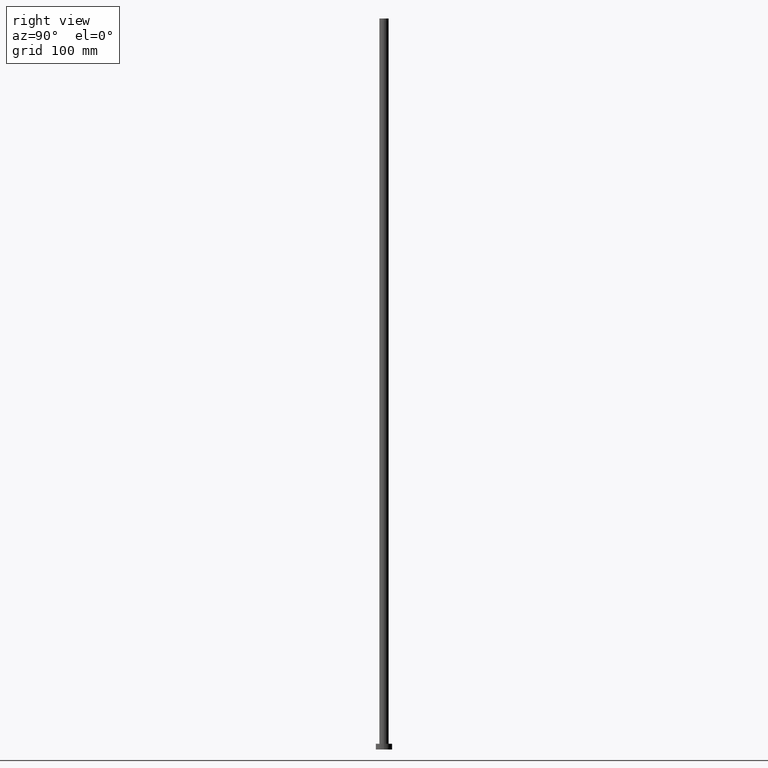
[diagram: clean part render]
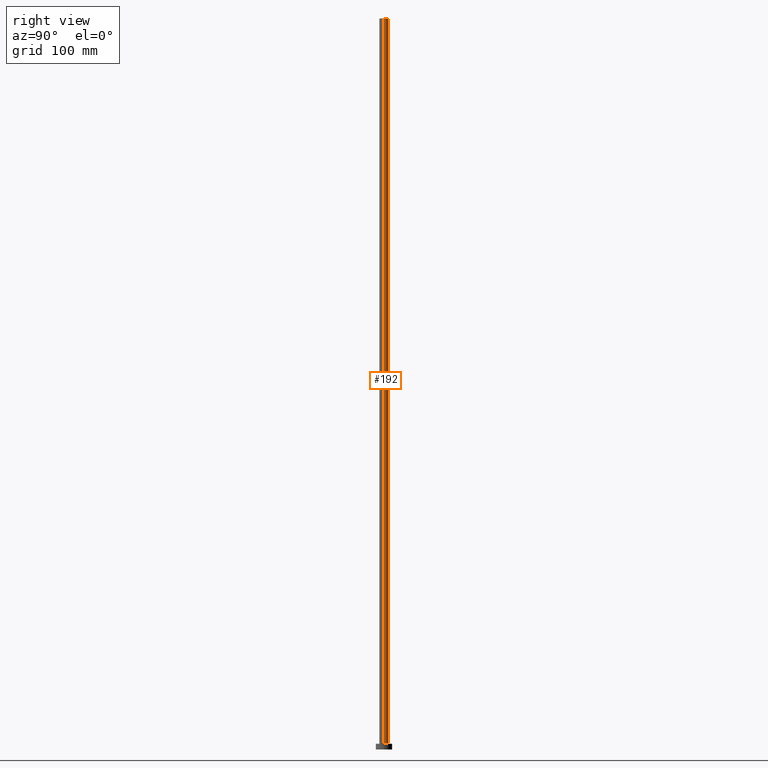
[diagram: same view with one face highlighted and labeled with its STEP entity id]
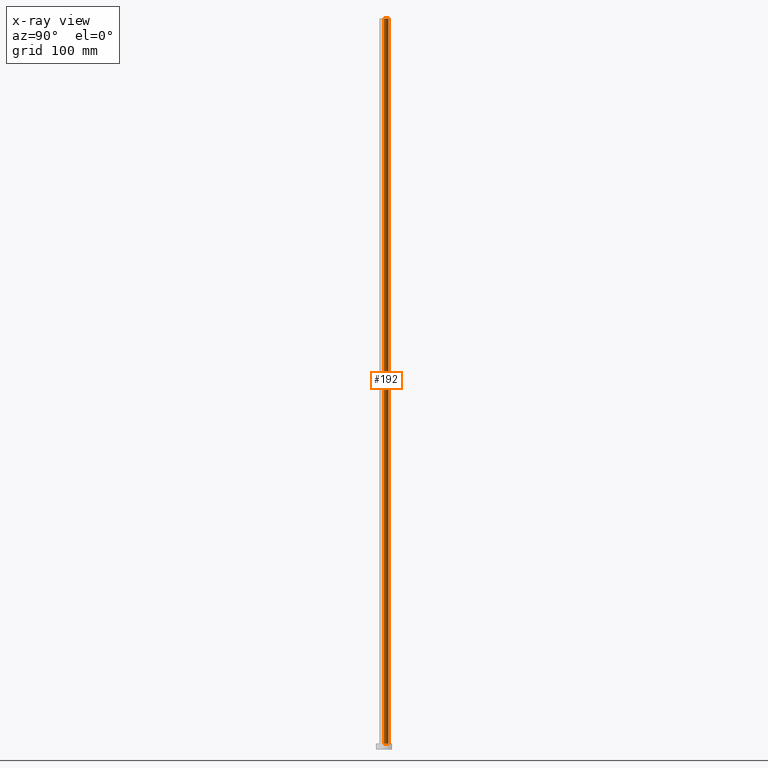
[diagram: x-ray of the same camera — body ghosted, the highlighted face saturated]
A machine part, right view. The second image highlights one B-rep face of the part: STEP entity #192.
The next image is the same camera in x-ray: the body ghosted, the highlighted face saturated — about 0% of this face is hidden behind the body in this view.
In plain terms, the highlighted cylindrical surface (edge-blend (fillet) strip) has radius 4 mm, axis along (-0, -0, -1).
Its self-contained STEP definition (entity closure, byte-faithful):
#5 = CARTESIAN_POINT ( 'NONE',  ( 0.000000000000000000, 0.000000000000000000, 5.000000000000000000 ) ) ;
#11 = VERTEX_POINT ( 'NONE', #140 ) ;
#12 = DIRECTION ( 'NONE',  ( 0.000000000000000000, 0.000000000000000000, 1.000000000000000000 ) ) ;
#18 = DIRECTION ( 'NONE',  ( -0.000000000000000000, -0.000000000000000000, -1.000000000000000000 ) ) ;
#33 = DIRECTION ( 'NONE',  ( -0.000000000000000000, -0.000000000000000000, -1.000000000000000000 ) ) ;
#35 = CARTESIAN_POINT ( 'NONE',  ( 0.000000000000000000, 0.000000000000000000, 630.0000000000000000 ) ) ;
#53 = EDGE_CURVE ( 'NONE', #79, #125, #101, .T. ) ;
#54 = DIRECTION ( 'NONE',  ( 1.000000000000000000, 0.000000000000000000, 0.000000000000000000 ) ) ;
#60 = LINE ( 'NONE', #209, #250 ) ;
#61 = EDGE_CURVE ( 'NONE', #125, #11, #60, .T. ) ;
#77 = ORIENTED_EDGE ( 'NONE', *, *, #220, .T. ) ;
#79 = VERTEX_POINT ( 'NONE', #151 ) ;
#86 = DIRECTION ( 'NONE',  ( 0.000000000000000000, 0.000000000000000000, 1.000000000000000000 ) ) ;
#101 = CIRCLE ( 'NONE', #167, 4.000000000000000000 ) ;
#109 = CIRCLE ( 'NONE', #254, 4.000000000000000000 ) ;
#117 = VERTEX_POINT ( 'NONE', #225 ) ;
#123 = ORIENTED_EDGE ( 'NONE', *, *, #174, .T. ) ;
#125 = VERTEX_POINT ( 'NONE', #135 ) ;
#135 = CARTESIAN_POINT ( 'NONE',  ( -4.000000000000000000, 0.000000000000000000, 630.0000000000000000 ) ) ;
#140 = CARTESIAN_POINT ( 'NONE',  ( -4.000000000000000000, 0.000000000000000000, 5.000000000000000000 ) ) ;
#144 = CYLINDRICAL_SURFACE ( 'NONE', #219, 4.000000000000000000 ) ;
#148 = FACE_OUTER_BOUND ( 'NONE', #229, .T. ) ;
#151 = CARTESIAN_POINT ( 'NONE',  ( 4.000000000000000000, 4.898587196589412829E-16, 630.0000000000000000 ) ) ;
#167 = AXIS2_PLACEMENT_3D ( 'NONE', #35, #12, #54 ) ;
#174 = EDGE_CURVE ( 'NONE', #79, #117, #200, .T. ) ;
#183 = DIRECTION ( 'NONE',  ( 1.000000000000000000, 0.000000000000000000, 0.000000000000000000 ) ) ;
#185 = VECTOR ( 'NONE', #247, 1000.000000000000000 ) ;
#192 = ADVANCED_FACE ( 'NONE', ( #148 ), #144, .T. ) ;
#195 = CARTESIAN_POINT ( 'NONE',  ( 0.000000000000000000, 0.000000000000000000, 630.0000000000000000 ) ) ;
#196 = ORIENTED_EDGE ( 'NONE', *, *, #53, .F. ) ;
#200 = LINE ( 'NONE', #222, #185 ) ;
#206 = ORIENTED_EDGE ( 'NONE', *, *, #61, .F. ) ;
#209 = CARTESIAN_POINT ( 'NONE',  ( -4.000000000000000000, 0.000000000000000000, 630.0000000000000000 ) ) ;
#212 = DIRECTION ( 'NONE',  ( -1.000000000000000000, 0.000000000000000000, 0.000000000000000000 ) ) ;
#219 = AXIS2_PLACEMENT_3D ( 'NONE', #195, #18, #212 ) ;
#220 = EDGE_CURVE ( 'NONE', #117, #11, #109, .T. ) ;
#222 = CARTESIAN_POINT ( 'NONE',  ( 4.000000000000000000, 4.898587196589412829E-16, 630.0000000000000000 ) ) ;
#225 = CARTESIAN_POINT ( 'NONE',  ( 4.000000000000000000, 4.898587196589412829E-16, 5.000000000000000000 ) ) ;
#229 = EDGE_LOOP ( 'NONE', ( #196, #123, #77, #206 ) ) ;
#247 = DIRECTION ( 'NONE',  ( -0.000000000000000000, -0.000000000000000000, -1.000000000000000000 ) ) ;
#250 = VECTOR ( 'NONE', #33, 1000.000000000000000 ) ;
#254 = AXIS2_PLACEMENT_3D ( 'NONE', #5, #86, #183 ) ;